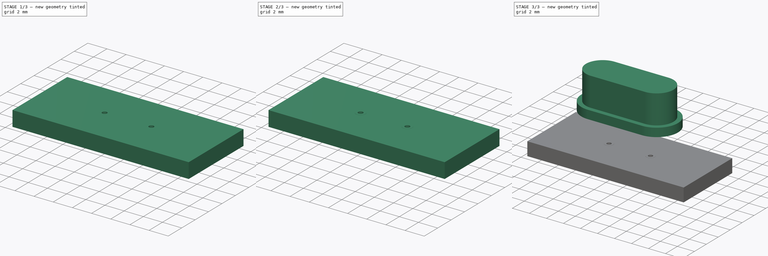
[diagram: build sequence overview — one tinted view per stage of 3, left to right]
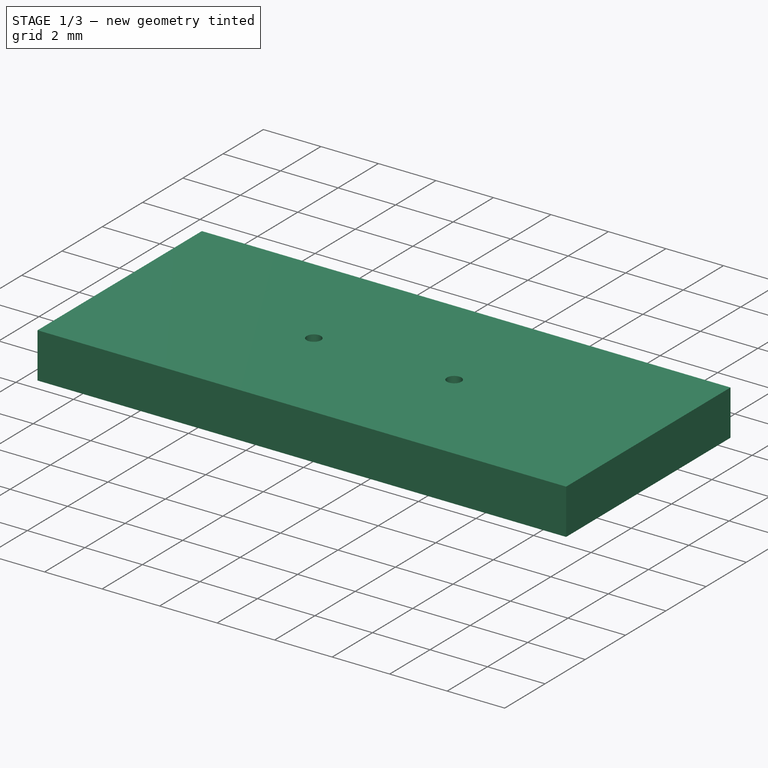
[diagram: stage 1 of 3 — iso view after this stage's code; geometry added in this stage tinted green]
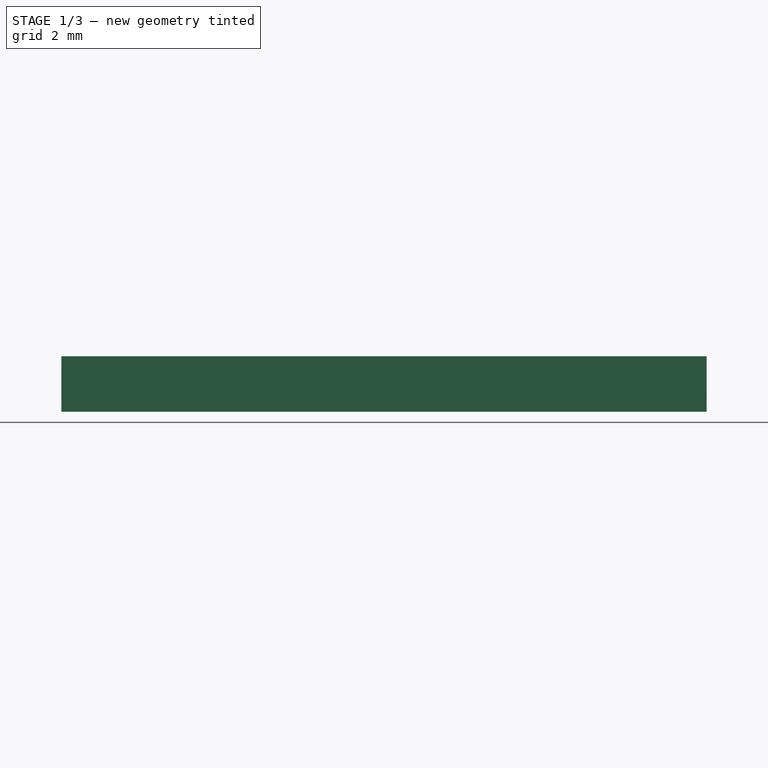
[diagram: stage 1 of 3 — front view after this stage's code; geometry added in this stage tinted green]
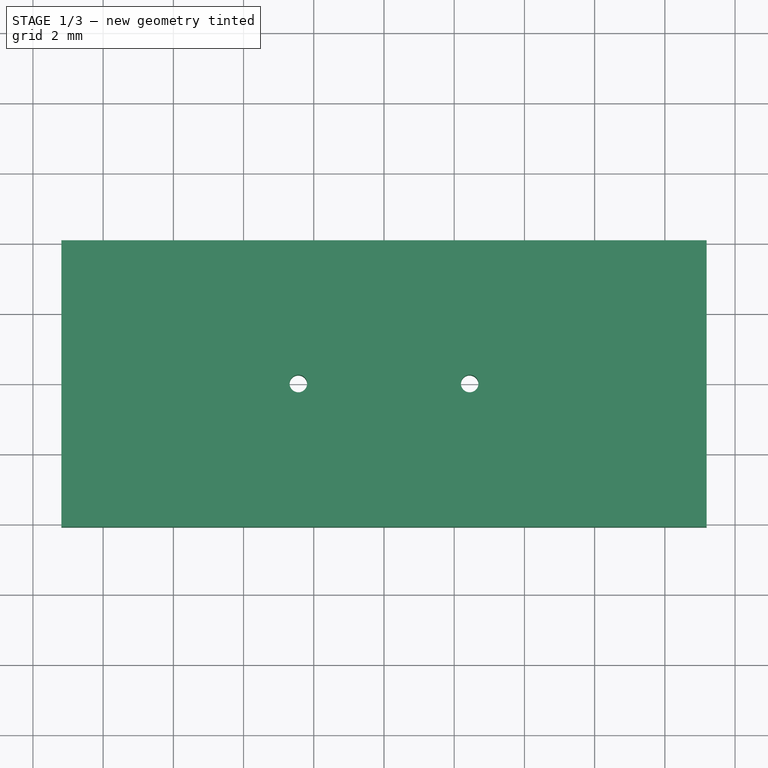
[diagram: stage 1 of 3 — top view after this stage's code; geometry added in this stage tinted green]
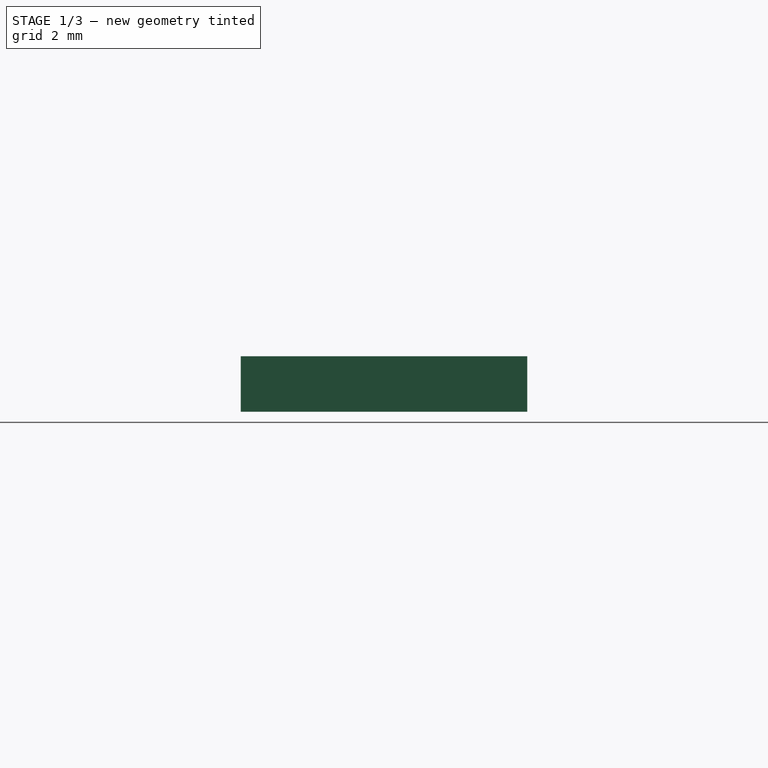
[diagram: stage 1 of 3 — right view after this stage's code; geometry added in this stage tinted green]
FCSTD DOCUMENT  (FreeCAD 0.18R16146 (Git))
Label: crystal
License: All rights reserved
LicenseURL: http://en.wikipedia.org/wiki/All_rights_reserved
objects: Part::FeaturePython×5, Sketcher::SketchObject×3, PartDesign::Pad×2, PartDesign::Body×1, App::DocumentObjectGroup×1, Part::Feature×1
note: 14 computed .brp shape members not serialized (recipe doc carries the construction recipe); baked Part::Feature solids carry a one-line shape summary decoded from their .brp

FEATURE [Part::FeaturePython] THPs  label="PTHs"  # a2plus imported part (geometry in sourceFile) (typed FeaturePython)
  fixedPosition = true
FEATURE [Part::FeaturePython] newPCB  label="Pcb"  # a2plus imported part (geometry in sourceFile) (typed FeaturePython)
  fixedPosition = true
FEATURE [App::DocumentObjectGroup] Crystal_TH_AS16_5mm_fp
  Group = -> [Filk_lines,TopPads,BotPads,THPs,newPCB]
FEATURE [Part::Feature] Shape001  label="Crystal"
  shape: bbox 11.35 x 5 x 16.4 mm, 15 faces (baked)
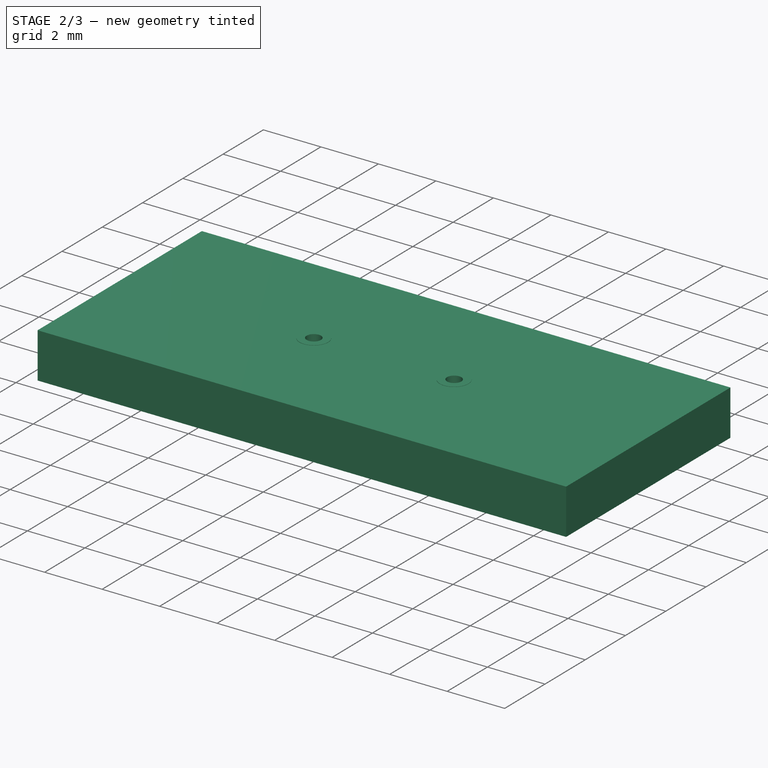
[diagram: stage 2 of 3 — iso view after this stage's code; geometry added in this stage tinted green]
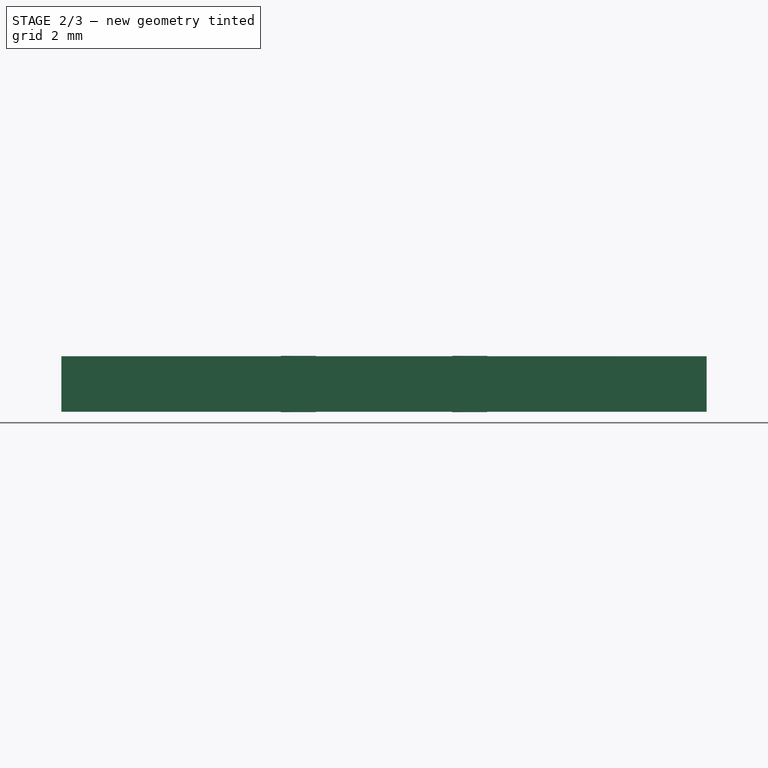
[diagram: stage 2 of 3 — front view after this stage's code; geometry added in this stage tinted green]
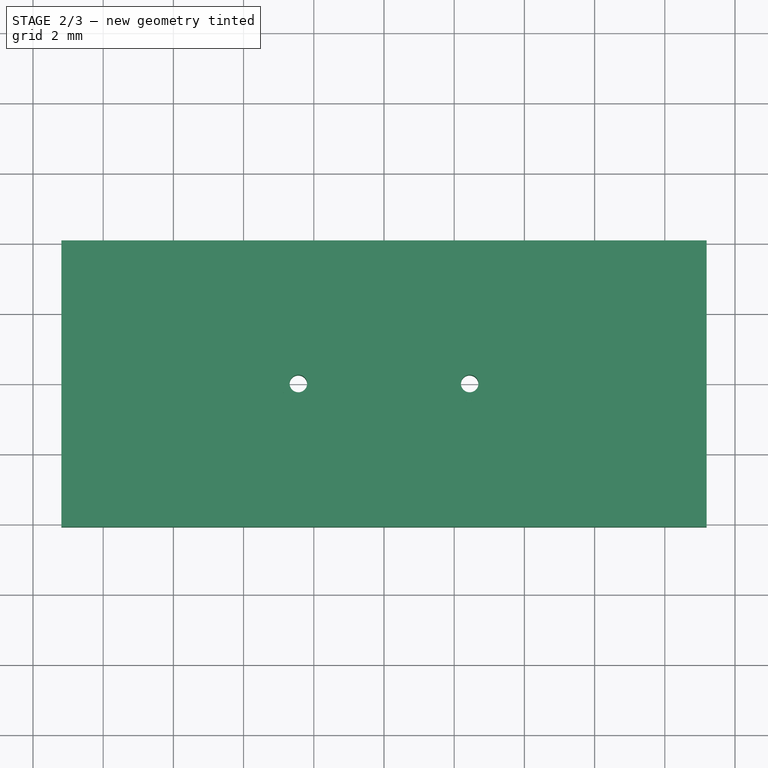
[diagram: stage 2 of 3 — top view after this stage's code; geometry added in this stage tinted green]
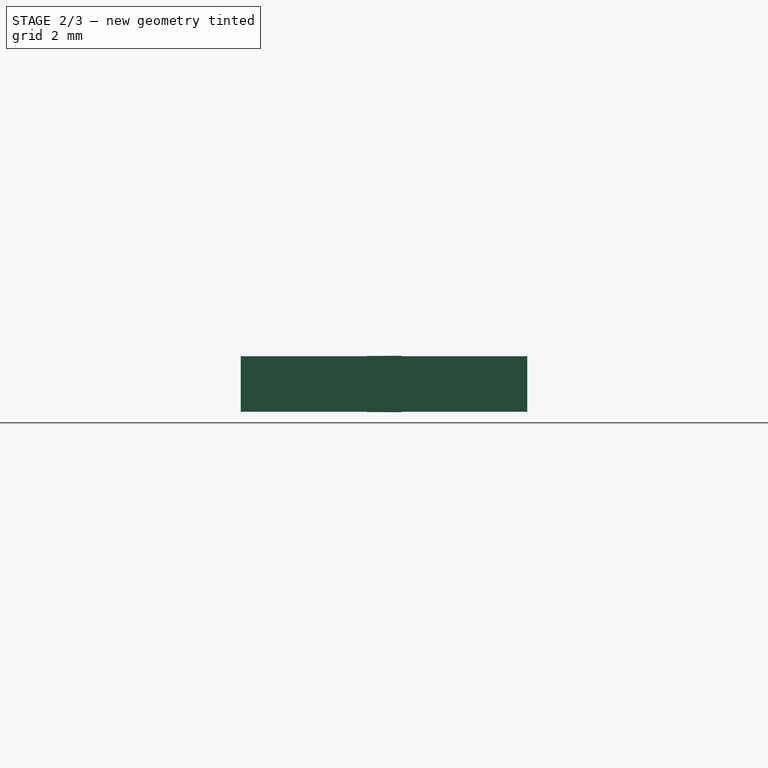
[diagram: stage 2 of 3 — right view after this stage's code; geometry added in this stage tinted green]
FEATURE [Sketcher::SketchObject] Sketch002
  ExternalGeometry = -> [Pad001]
  MapMode = 5
  Placement = pos=(0,0,0) rot=(1,0,0;3.14159rad)
  Support = -> [Pad001]
  sketch-geometry (5):
    g0: Circle CenterX=-6.55947 CenterY=-5.86912 CenterZ=0 NormalX=0 NormalY=0 NormalZ=1 AngleXU=0 Radius=0.215
    g1: Circle CenterX=-1.67947 CenterY=-5.86912 CenterZ=0 NormalX=0 NormalY=0 NormalZ=1 AngleXU=0 Radius=0.215
    g2: LineSegment [constr] StartX=-7.29446 StartY=-5.86912 StartZ=0 EndX=-0.944465 EndY=-5.86912 EndZ=0
    g3: LineSegment [constr] StartX=-7.29634 StartY=-5.86912 StartZ=0 EndX=-6.55947 EndY=-5.86912 EndZ=0
    g4: LineSegment [constr] StartX=-1.67946 StartY=-5.86912 StartZ=0 EndX=-0.942626 EndY=-5.87608 EndZ=0
  constraints (6):
    c: Radius(g0) = 0.215
    c: Radius(g1) = 0.215
    c: Distance(g0,g1) = 4.88
    c: PointOnObject(g0,g2)
    c: PointOnObject(g1,g2)
    c: Equal(g3,g4)
FEATURE [PartDesign::Body] Body
  Group = -> [Sketch,Pad,Sketch001,Pad001,Sketch002]
  Origin = -> Origin
FEATURE [Part::FeaturePython] Filk_lines  label="FrontSilk"  # a2plus imported part (geometry in sourceFile) (typed FeaturePython)
  fixedPosition = true
FEATURE [Part::FeaturePython] TopPads  # a2plus imported part (geometry in sourceFile) (typed FeaturePython)
  fixedPosition = true
FEATURE [Part::FeaturePython] BotPads  # a2plus imported part (geometry in sourceFile) (typed FeaturePython)
  fixedPosition = true
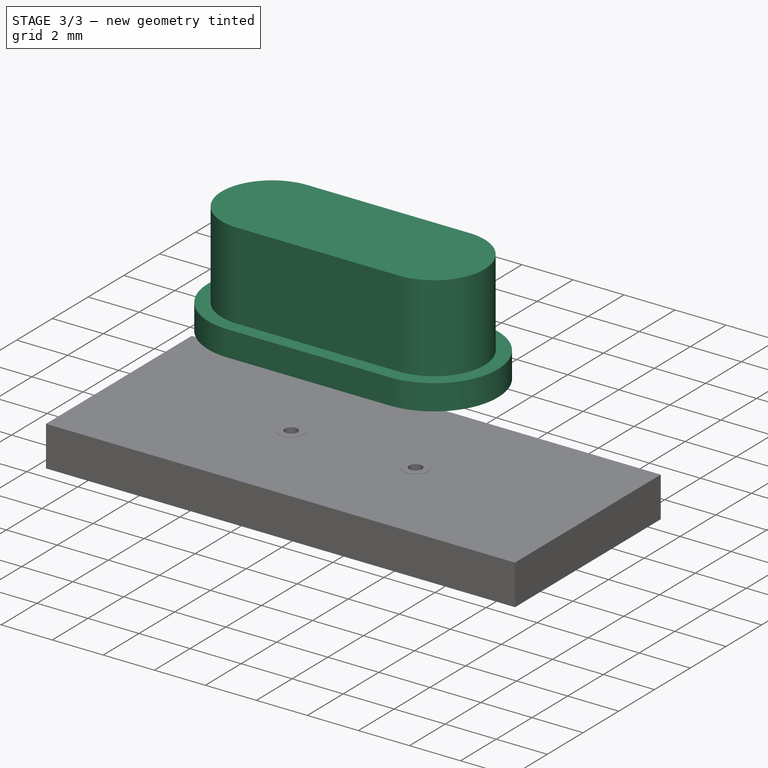
[diagram: stage 3 of 3 — iso view after this stage's code; geometry added in this stage tinted green]
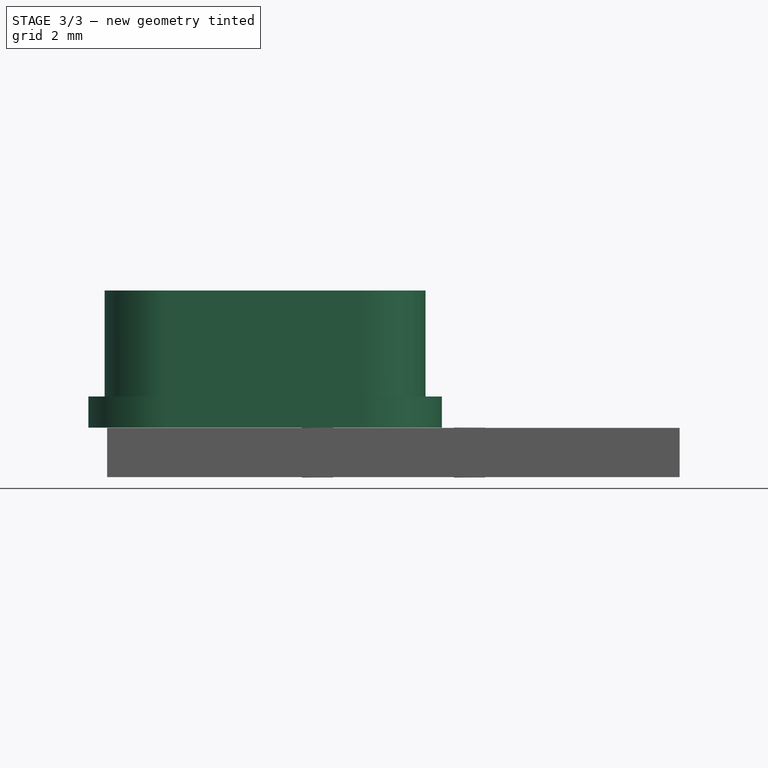
[diagram: stage 3 of 3 — front view after this stage's code; geometry added in this stage tinted green]
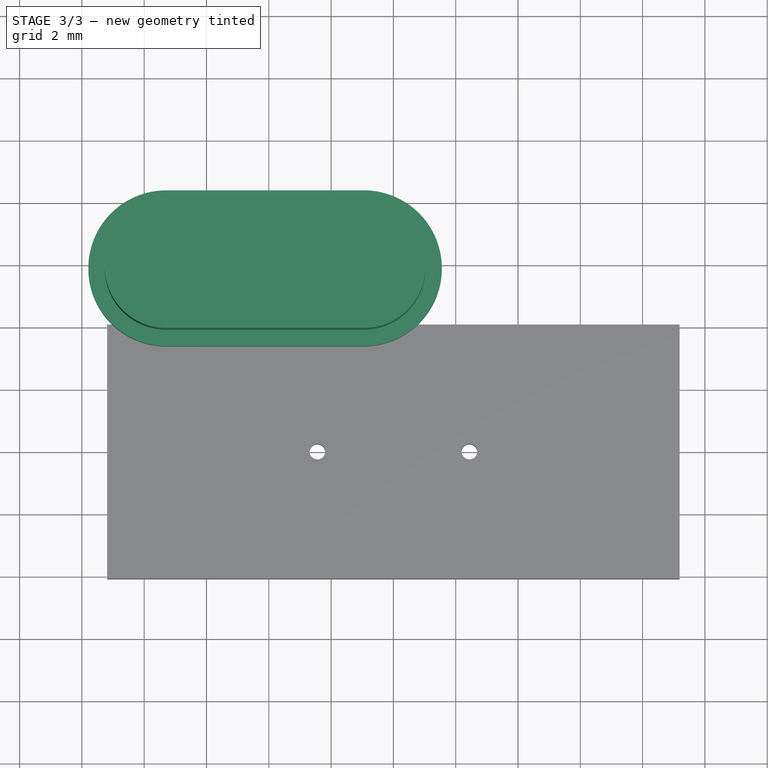
[diagram: stage 3 of 3 — top view after this stage's code; geometry added in this stage tinted green]
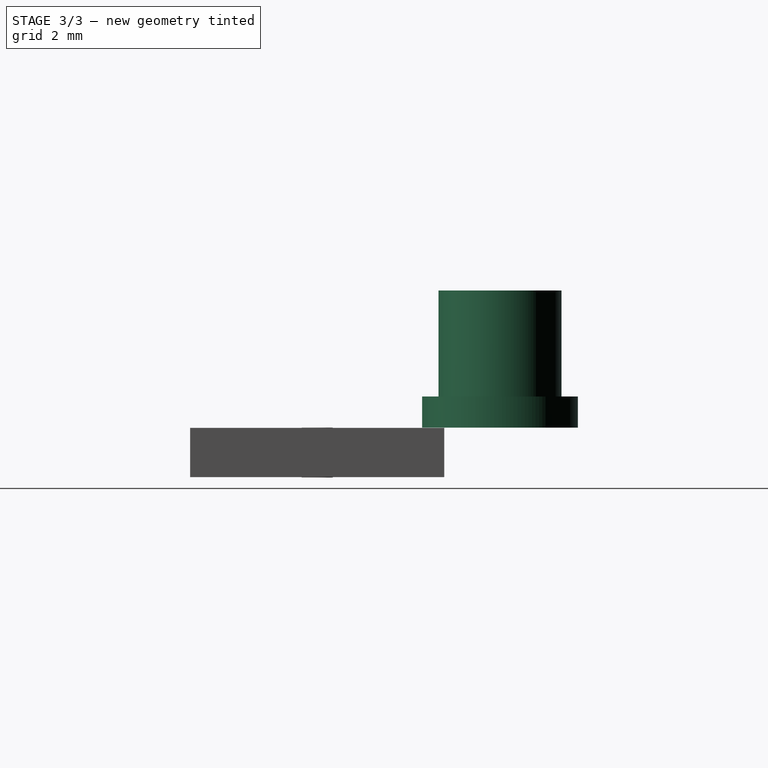
[diagram: stage 3 of 3 — right view after this stage's code; geometry added in this stage tinted green]
FEATURE [Sketcher::SketchObject] Sketch
  MapMode = 5
  Support = -> [XY_Plane]
  sketch-geometry (6):
    g0: ArcOfCircle CenterX=-7.29447 CenterY=5.86912 CenterZ=0 NormalX=0 NormalY=0 NormalZ=1 AngleXU=0 Radius=2.5 StartAngle=1.5708 EndAngle=4.71239
    g1: ArcOfCircle CenterX=-0.944465 CenterY=5.86912 CenterZ=0 NormalX=0 NormalY=0 NormalZ=1 AngleXU=0 Radius=2.5 StartAngle=4.71239 EndAngle=7.85398
    g2: LineSegment StartX=-7.29447 StartY=3.36912 StartZ=0 EndX=-0.944465 EndY=3.36912 EndZ=0
    g3: LineSegment StartX=-7.29447 StartY=8.36912 StartZ=0 EndX=-0.944465 EndY=8.36912 EndZ=0
    g4: LineSegment [constr] StartX=-7.29446 StartY=8.36912 StartZ=0 EndX=-0.944465 EndY=3.36912 EndZ=0
    g5: LineSegment [constr] StartX=-7.29446 StartY=3.36912 StartZ=0 EndX=-0.944465 EndY=8.36912 EndZ=0
  constraints (8):
    c: Tangent(g0,g3) = 1.5708
    c: Tangent(g0,g2) = -1.5708
    c: Tangent(g2,g1) = -1.5708
    c: Tangent(g3,g1) = 1.5708
    c: Horizontal(g2)
    c: Equal(g0,g1)
    c: Radius(g1) = 2.5
    c: Distance(g3) = 6.35
FEATURE [PartDesign::Pad] Pad
  Length = 1
  Length2 = 100
  Profile = -> Sketch
  Type = 0
FEATURE [Sketcher::SketchObject] Sketch001
  ExternalGeometry = -> [Pad]
  MapMode = 5
  Placement = pos=(0,0,1) rot=(0,0,1;0rad)
  Support = -> [Pad]
  sketch-geometry (5):
    g0: ArcOfCircle CenterX=-7.29448 CenterY=5.86912 CenterZ=0 NormalX=0 NormalY=0 NormalZ=1 AngleXU=0 Radius=1.975 StartAngle=1.5708 EndAngle=4.71239
    g1: ArcOfCircle CenterX=-0.944478 CenterY=5.86912 CenterZ=0 NormalX=0 NormalY=0 NormalZ=1 AngleXU=0 Radius=1.975 StartAngle=4.71239 EndAngle=7.85398
    g2: LineSegment StartX=-7.29448 StartY=3.89412 StartZ=0 EndX=-0.944478 EndY=3.89412 EndZ=0
    g3: LineSegment StartX=-7.29448 StartY=7.84412 StartZ=0 EndX=-0.944478 EndY=7.84412 EndZ=0
    g4: LineSegment [constr] StartX=-9.26948 StartY=5.86912 StartZ=0 EndX=1.03052 EndY=5.86912 EndZ=0
  constraints (14):
    c: Tangent(g0,g3) = 1.5708
    c: Tangent(g0,g2) = -1.5708
    c: Tangent(g2,g1) = -1.5708
    c: Tangent(g3,g1) = 1.5708
    c: Horizontal(g2)
    c: Equal(g0,g1)
    c: PointOnObject(g0,g4)
    c: PointOnObject(g1,g4)
    c: PointOnObject(g4,g0)
    c: PointOnObject(g4,g1)
    c: Distance(g4) = 10.3
    c: Distance(g-4,g1) = 0.525
    c: Distance(g1,g-4) = 0.525
    c: Distance(g-3,g0) = 0.525
FEATURE [PartDesign::Pad] Pad001
  BaseFeature = -> Pad
  Length = 3.4
  Length2 = 100
  Profile = -> Sketch001
  Type = 0
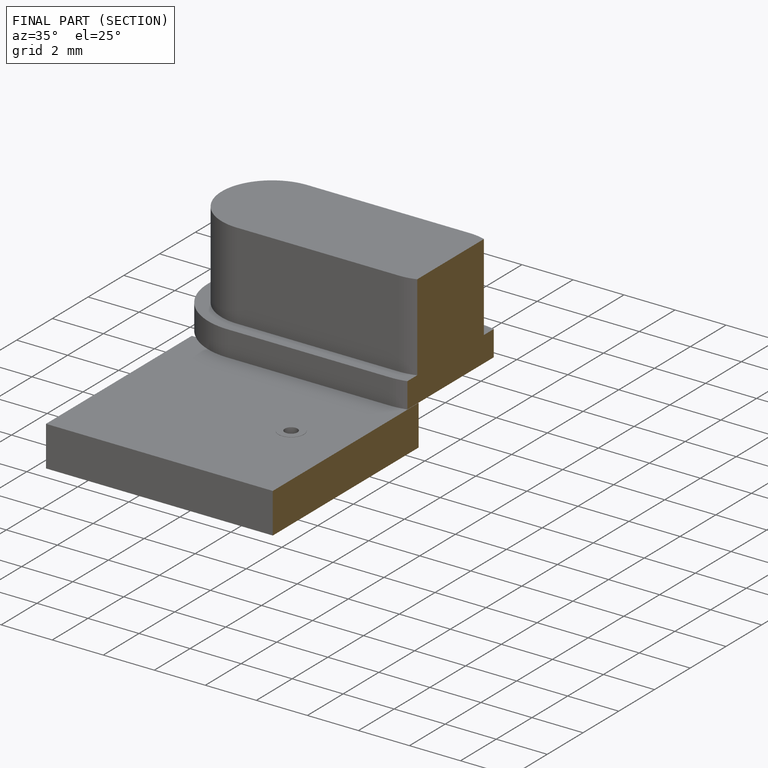
[diagram: finished part — half-section view (interior)]
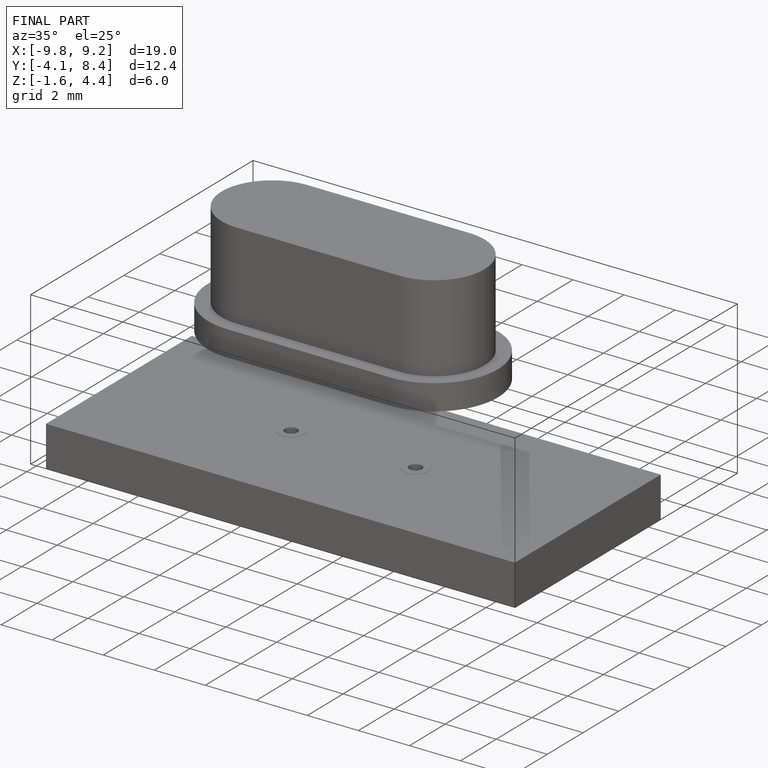
[diagram: finished part — iso view with bounding-box wireframe]
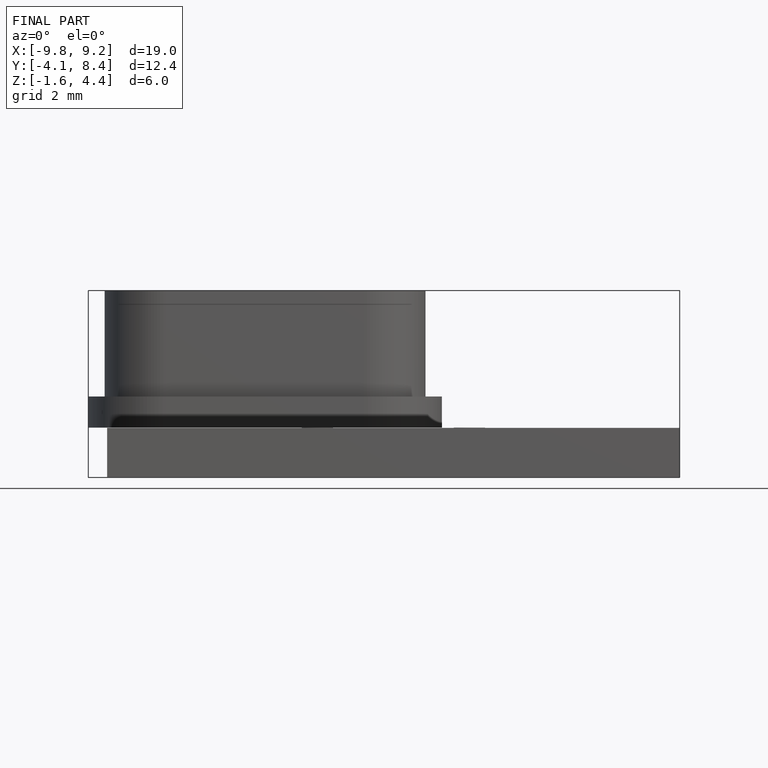
[diagram: finished part — front view with bounding-box wireframe]
